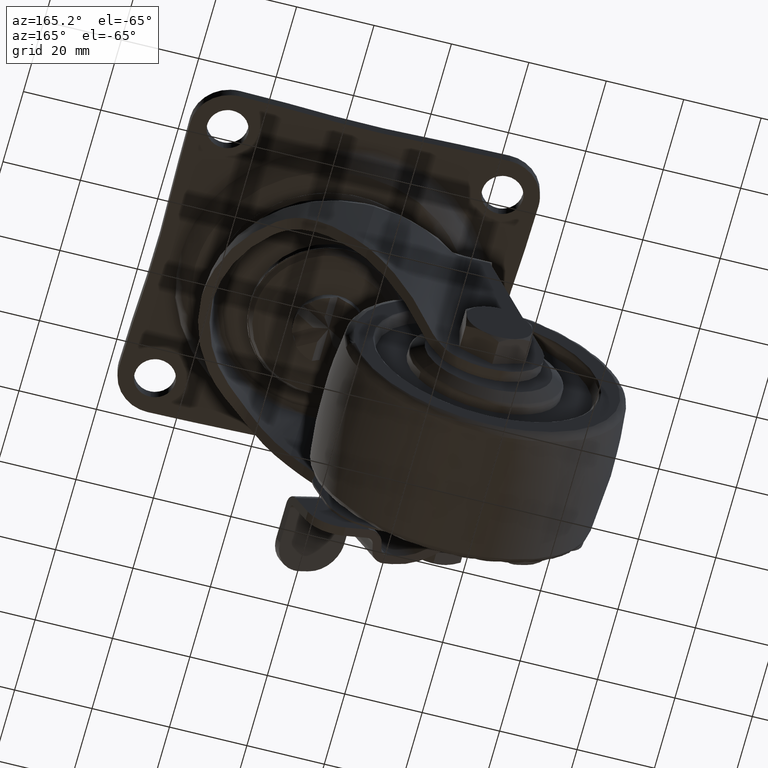
[diagram: clean part render]
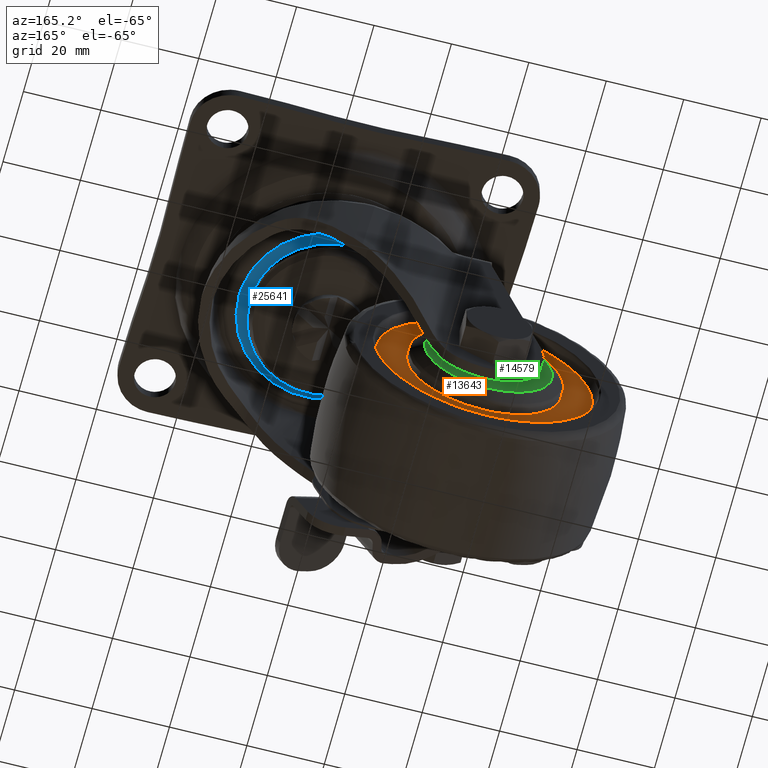
[diagram: same view with three faces highlighted in distinct colors, each labeled with its STEP entity id]
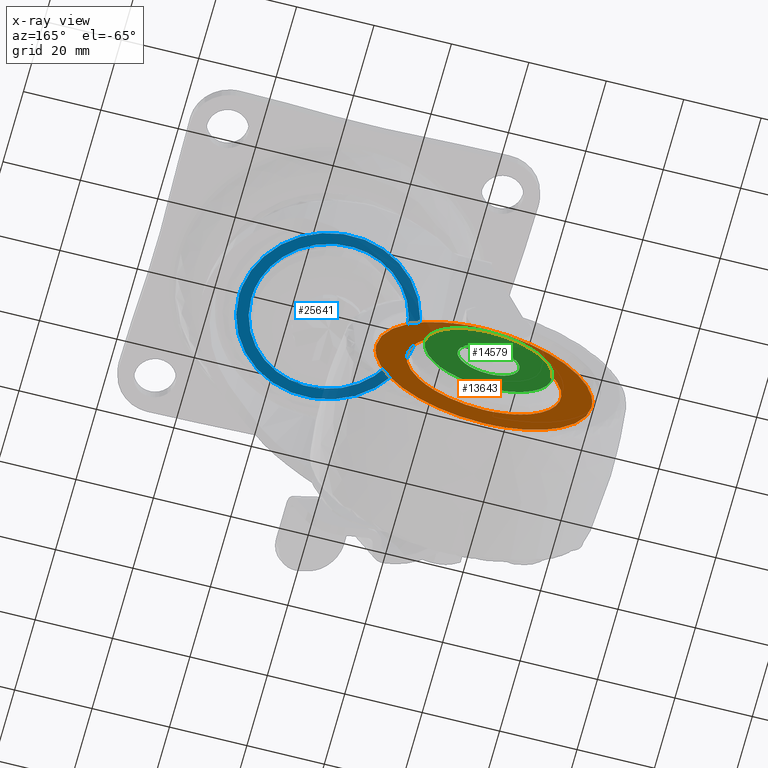
[diagram: x-ray of the same camera — body ghosted, the three highlighted faces saturated]
A machine part, auxiliary view with three faces highlighted in distinct colors.
The next image is the same camera in x-ray (body ghosted, the three faces saturated) — at least one of them is partly hidden behind the body in this view.
Their STEP definitions:

[orange] entity #13643 — the highlighted face is a freeform B-spline surface patch.
#13283=CARTESIAN_POINT('',(-8.179988041058948,15.500000000016479,-65.330344014411210));
#13284=VERTEX_POINT('',#13283);
#13290=CARTESIAN_POINT('',(-36.0,15.500000000000000,-40.500034000000603));
#13291=VERTEX_POINT('',#13290);
#13292=CARTESIAN_POINT('',(-8.179988041058948,15.500000000016477,-65.330344014411210));
#13293=CARTESIAN_POINT('',(-11.009044516951512,15.500000000008239,-40.500034000000234));
#13294=CARTESIAN_POINT('',(-36.0,15.500000000000000,-40.500034000000603));
#13302=(BOUNDED_CURVE()B_SPLINE_CURVE(2,(#13292,#13293,#13294),.UNSPECIFIED.,.F.,.U.)B_SPLINE_CURVE_WITH_KNOTS((3,3),(0.269614860200657,0.500000000000000),.UNSPECIFIED.)CURVE()GEOMETRIC_REPRESENTATION_ITEM()RATIONAL_B_SPLINE_CURVE((0.957645556945588,0.730087019349533,1.0))REPRESENTATION_ITEM(''));
#13303=EDGE_CURVE('',#13284,#13291,#13302,.T.);
#13305=CARTESIAN_POINT('',(-63.820011958941052,15.500000000016479,-71.669723985589982));
#13306=VERTEX_POINT('',#13305);
#13307=CARTESIAN_POINT('',(-36.0,15.500000000000000,-40.500034000000603));
#13308=CARTESIAN_POINT('',(-64.000000000002913,15.500000000007347,-40.500034000000944));
#13309=CARTESIAN_POINT('',(-64.000000000006196,15.500000000015589,-68.500034000001293));
#13310=CARTESIAN_POINT('',(-64.000000000006366,15.500000000016058,-70.089989223618517));
#13311=CARTESIAN_POINT('',(-63.820011958941052,15.500000000016476,-71.669723985589982));
#13319=(BOUNDED_CURVE()B_SPLINE_CURVE(2,(#13307,#13308,#13309,#13310,#13311),.UNSPECIFIED.,.F.,.U.)B_SPLINE_CURVE_WITH_KNOTS((3,2,3),(0.500000000000000,0.750000000000000,0.769614860200657),.UNSPECIFIED.)CURVE()GEOMETRIC_REPRESENTATION_ITEM()RATIONAL_B_SPLINE_CURVE((1.0,0.707106781186547,1.0,0.977019761837015,0.957645556945588))REPRESENTATION_ITEM(''));
#13320=EDGE_CURVE('',#13291,#13306,#13319,.T.);
#13350=CARTESIAN_POINT('',(-36.0,15.500000000000000,-96.500034000000596));
#13351=VERTEX_POINT('',#13350);
#13352=CARTESIAN_POINT('',(-63.820011958941052,15.500000000016476,-71.669723985589982));
#13353=CARTESIAN_POINT('',(-60.990955483048502,15.500000000008239,-96.500034000000952));
#13354=CARTESIAN_POINT('',(-36.0,15.500000000000000,-96.500034000000596));
#13362=(BOUNDED_CURVE()B_SPLINE_CURVE(2,(#13352,#13353,#13354),.UNSPECIFIED.,.F.,.U.)B_SPLINE_CURVE_WITH_KNOTS((3,3),(0.769614860200657,1.0),.UNSPECIFIED.)CURVE()GEOMETRIC_REPRESENTATION_ITEM()RATIONAL_B_SPLINE_CURVE((0.957645556945588,0.730087019349533,1.0))REPRESENTATION_ITEM(''));
#13363=EDGE_CURVE('',#13306,#13351,#13362,.T.);
#13365=CARTESIAN_POINT('',(-36.0,15.500000000000000,-96.500034000000596));
#13366=CARTESIAN_POINT('',(-7.999999999997083,15.500000000007347,-96.500034000000269));
#13367=CARTESIAN_POINT('',(-7.999999999993808,15.500000000015589,-68.500033999999900));
#13368=CARTESIAN_POINT('',(-7.999999999993624,15.500000000016058,-66.910078776382676));
#13369=CARTESIAN_POINT('',(-8.179988041058948,15.500000000016477,-65.330344014411210));
#13377=(BOUNDED_CURVE()B_SPLINE_CURVE(2,(#13365,#13366,#13367,#13368,#13369),.UNSPECIFIED.,.F.,.U.)B_SPLINE_CURVE_WITH_KNOTS((3,2,3),(0.0,0.250000000000000,0.269614860200657),.UNSPECIFIED.)CURVE()GEOMETRIC_REPRESENTATION_ITEM()RATIONAL_B_SPLINE_CURVE((1.0,0.707106781186547,1.0,0.977019761837015,0.957645556945588))REPRESENTATION_ITEM(''));
#13378=EDGE_CURVE('',#13351,#13284,#13377,.T.);
#13566=CARTESIAN_POINT('',(-66.797178914962970,15.500000000000000,-37.702834108539477));
#13567=CARTESIAN_POINT('',(-66.797178914962970,15.500000000000000,-99.297235393498781));
#13568=CARTESIAN_POINT('',(-5.202820584358026,15.500000000000000,-37.702834108539477));
#13569=CARTESIAN_POINT('',(-5.202820584358026,15.500000000000000,-99.297235393498781));
#13570=B_SPLINE_SURFACE_WITH_KNOTS('',1,1,((#13566,#13568),(#13567,#13569)),.UNSPECIFIED.,.F.,.F.,.U.,(2,2),(2,2),(0.0,61.594401284959311),(0.0,61.594358330604940),.UNSPECIFIED.);
#13571=ORIENTED_EDGE('',*,*,#13363,.F.);
#13572=ORIENTED_EDGE('',*,*,#13320,.F.);
#13573=ORIENTED_EDGE('',*,*,#13303,.F.);
#13574=ORIENTED_EDGE('',*,*,#13378,.F.);
#13575=EDGE_LOOP('',(#13571,#13572,#13573,#13574));
#13576=FACE_OUTER_BOUND('',#13575,.T.);
#13577=CARTESIAN_POINT('',(-36.0,15.500000000000000,-48.500034000000348));
#13578=VERTEX_POINT('',#13577);
#13579=CARTESIAN_POINT('',(-52.867833506232252,15.500000000000000,-57.754049037887270));
#13580=VERTEX_POINT('',#13579);
#13581=CARTESIAN_POINT('',(-36.0,15.500000000000000,-48.500034000000348));
#13582=CARTESIAN_POINT('',(-46.972381289470789,15.500000000000002,-48.500034000000838));
#13583=CARTESIAN_POINT('',(-52.867833506232245,15.499999999999998,-57.754049037887270));
#13591=(BOUNDED_CURVE()B_SPLINE_CURVE(2,(#13581,#13582,#13583),.UNSPECIFIED.,.F.,.U.)B_SPLINE_CURVE_WITH_KNOTS((3,3),(0.500000000000000,0.658049988508433),.UNSPECIFIED.)CURVE()GEOMETRIC_REPRESENTATION_ITEM()RATIONAL_B_SPLINE_CURVE((1.0,0.814832920529343,0.863791079318506))REPRESENTATION_ITEM(''));
#13592=EDGE_CURVE('',#13578,#13580,#13591,.T.);
#13593=ORIENTED_EDGE('',*,*,#13592,.T.);
#13594=CARTESIAN_POINT('',(-36.0,15.500000000000000,-88.500034000000852));
#13595=VERTEX_POINT('',#13594);
#13596=CARTESIAN_POINT('',(-52.867833506232245,15.499999999999998,-57.754049037887270));
#13597=CARTESIAN_POINT('',(-55.999999999998835,15.499999999999993,-62.670570242497327));
#13598=CARTESIAN_POINT('',(-55.999999999999062,15.500000000000000,-68.500034000001349));
#13599=CARTESIAN_POINT('',(-55.999999999999837,15.500000000000005,-88.500034000001136));
#13600=CARTESIAN_POINT('',(-36.0,15.500000000000000,-88.500034000000852));
#13608=(BOUNDED_CURVE()B_SPLINE_CURVE(2,(#13596,#13597,#13598,#13599,#13600),.UNSPECIFIED.,.F.,.U.)B_SPLINE_CURVE_WITH_KNOTS((3,2,3),(0.658049988508433,0.750000000000000,1.0),.UNSPECIFIED.)CURVE()GEOMETRIC_REPRESENTATION_ITEM()RATIONAL_B_SPLINE_CURVE((0.863791079318506,0.892273860657204,1.0,0.707106781186547,1.0))REPRESENTATION_ITEM(''));
#13609=EDGE_CURVE('',#13580,#13595,#13608,.T.);
#13610=ORIENTED_EDGE('',*,*,#13609,.T.);
#13611=CARTESIAN_POINT('',(-19.132166493767748,15.500000000000000,-79.246018962113908));
#13612=VERTEX_POINT('',#13611);
#13613=CARTESIAN_POINT('',(-36.0,15.500000000000000,-88.500034000000852));
#13614=CARTESIAN_POINT('',(-25.027618710529193,15.500000000000005,-88.500034000000340));
#13615=CARTESIAN_POINT('',(-19.132166493767745,15.500000000000004,-79.246018962113922));
#13623=(BOUNDED_CURVE()B_SPLINE_CURVE(2,(#13613,#13614,#13615),.UNSPECIFIED.,.F.,.U.)B_SPLINE_CURVE_WITH_KNOTS((3,3),(0.0,0.158049988508433),.UNSPECIFIED.)CURVE()GEOMETRIC_REPRESENTATION_ITEM()RATIONAL_B_SPLINE_CURVE((1.0,0.814832920529343,0.863791079318506))REPRESENTATION_ITEM(''));
#13624=EDGE_CURVE('',#13595,#13612,#13623,.T.);
#13625=ORIENTED_EDGE('',*,*,#13624,.T.);
#13626=CARTESIAN_POINT('',(-19.132166493767745,15.500000000000004,-79.246018962113922));
#13627=CARTESIAN_POINT('',(-16.000000000001162,15.500000000000002,-74.329497757503844));
#13628=CARTESIAN_POINT('',(-16.000000000000941,15.500000000000000,-68.500033999999829));
#13629=CARTESIAN_POINT('',(-16.000000000000171,15.500000000000005,-48.500034000000085));
#13630=CARTESIAN_POINT('',(-36.0,15.500000000000000,-48.500034000000348));
#13638=(BOUNDED_CURVE()B_SPLINE_CURVE(2,(#13626,#13627,#13628,#13629,#13630),.UNSPECIFIED.,.F.,.U.)B_SPLINE_CURVE_WITH_KNOTS((3,2,3),(0.158049988508433,0.250000000000000,0.500000000000000),.UNSPECIFIED.)CURVE()GEOMETRIC_REPRESENTATION_ITEM()RATIONAL_B_SPLINE_CURVE((0.863791079318506,0.892273860657204,1.0,0.707106781186547,1.0))REPRESENTATION_ITEM(''));
#13639=EDGE_CURVE('',#13612,#13578,#13638,.T.);
#13640=ORIENTED_EDGE('',*,*,#13639,.T.);
#13641=EDGE_LOOP('',(#13593,#13610,#13625,#13640));
#13642=FACE_BOUND('',#13641,.T.);
#13643=ADVANCED_FACE('',(#13576,#13642),#13570,.F.);

[blue] entity #25641 — the highlighted face is a freeform B-spline surface patch.
#24644=CARTESIAN_POINT('',(-1.220940604738921,19.962697814643821,-20.825541999997920));
#24645=VERTEX_POINT('',#24644);
#24646=CARTESIAN_POINT('',(20.0,0.0,-20.825542000000151));
#24647=VERTEX_POINT('',#24646);
#24648=CARTESIAN_POINT('',(-1.220940604738921,19.962697814643818,-20.825541999997924));
#24649=CARTESIAN_POINT('',(-0.611040130673797,19.999999999977504,-20.825541999997956));
#24650=CARTESIAN_POINT('',(1.354178E-012,19.999999999977849,-20.825541999997998));
#24651=CARTESIAN_POINT('',(20.000000000000647,19.999999999989264,-20.825541999999100));
#24652=CARTESIAN_POINT('',(20.0,0.0,-20.825542000000151));
#24660=(BOUNDED_CURVE()B_SPLINE_CURVE(2,(#24648,#24649,#24650,#24651,#24652),.UNSPECIFIED.,.F.,.U.)B_SPLINE_CURVE_WITH_KNOTS((3,2,3),(0.239333223153180,0.250000000000000,0.500000000000000),.UNSPECIFIED.)CURVE()GEOMETRIC_REPRESENTATION_ITEM()RATIONAL_B_SPLINE_CURVE((0.976072600856233,0.987503093579881,1.0,0.707106781186548,1.0))REPRESENTATION_ITEM(''));
#24661=EDGE_CURVE('',#24645,#24647,#24660,.T.);
#24663=CARTESIAN_POINT('',(1.220940604738919,-19.962697814643821,-20.825541999997931));
#24664=VERTEX_POINT('',#24663);
#24665=CARTESIAN_POINT('',(20.0,0.0,-20.825542000000151));
#24666=CARTESIAN_POINT('',(19.999999999999311,-18.814149840460210,-20.825541999999043));
#24667=CARTESIAN_POINT('',(1.220940604738919,-19.962697814643818,-20.825541999997931));
#24675=(BOUNDED_CURVE()B_SPLINE_CURVE(2,(#24665,#24666,#24667),.UNSPECIFIED.,.F.,.U.)B_SPLINE_CURVE_WITH_KNOTS((3,3),(0.500000000000000,0.739333223153180),.UNSPECIFIED.)CURVE()GEOMETRIC_REPRESENTATION_ITEM()RATIONAL_B_SPLINE_CURVE((1.0,0.719603687606667,0.976072600856233))REPRESENTATION_ITEM(''));
#24676=EDGE_CURVE('',#24647,#24664,#24675,.T.);
#24711=CARTESIAN_POINT('',(-20.0,0.0,-20.825542000000151));
#24712=VERTEX_POINT('',#24711);
#24713=CARTESIAN_POINT('',(-20.0,0.0,-20.825542000000151));
#24714=CARTESIAN_POINT('',(-19.999999999999297,18.814149840460210,-20.825541999999043));
#24715=CARTESIAN_POINT('',(-1.220940604738921,19.962697814643818,-20.825541999997924));
#24723=(BOUNDED_CURVE()B_SPLINE_CURVE(2,(#24713,#24714,#24715),.UNSPECIFIED.,.F.,.U.)B_SPLINE_CURVE_WITH_KNOTS((3,3),(0.0,0.239333223153180),.UNSPECIFIED.)CURVE()GEOMETRIC_REPRESENTATION_ITEM()RATIONAL_B_SPLINE_CURVE((1.0,0.719603687606667,0.976072600856233))REPRESENTATION_ITEM(''));
#24724=EDGE_CURVE('',#24712,#24645,#24723,.T.);
#24730=CARTESIAN_POINT('',(1.220940604738919,-19.962697814643818,-20.825541999997931));
#24731=CARTESIAN_POINT('',(0.611040130673798,-19.999999999977494,-20.825541999997967));
#24732=CARTESIAN_POINT('',(-1.350299E-012,-19.999999999977849,-20.825541999997998));
#24733=CARTESIAN_POINT('',(-20.000000000000647,-19.999999999989264,-20.825541999999100));
#24734=CARTESIAN_POINT('',(-20.0,0.0,-20.825542000000151));
#24742=(BOUNDED_CURVE()B_SPLINE_CURVE(2,(#24730,#24731,#24732,#24733,#24734),.UNSPECIFIED.,.F.,.U.)B_SPLINE_CURVE_WITH_KNOTS((3,2,3),(0.739333223153180,0.750000000000000,1.0),.UNSPECIFIED.)CURVE()GEOMETRIC_REPRESENTATION_ITEM()RATIONAL_B_SPLINE_CURVE((0.976072600856233,0.987503093579881,1.0,0.707106781186548,1.0))REPRESENTATION_ITEM(''));
#24743=EDGE_CURVE('',#24664,#24712,#24742,.T.);
#25403=CARTESIAN_POINT('',(-25.097762429813489,-25.213784278542288,-20.825542000000151));
#25404=CARTESIAN_POINT('',(25.429835009718690,-25.213784278542288,-20.825542000000151));
#25405=CARTESIAN_POINT('',(-25.097762429813489,25.214115962748519,-20.825542000000151));
#25406=CARTESIAN_POINT('',(25.429835009718690,25.214115962748519,-20.825542000000151));
#25407=B_SPLINE_SURFACE_WITH_KNOTS('',1,1,((#25403,#25405),(#25404,#25406)),.UNSPECIFIED.,.F.,.F.,.U.,(2,2),(2,2),(0.0,50.527597439532180),(0.0,50.427900241290807),.UNSPECIFIED.);
#25408=CARTESIAN_POINT('',(-22.803141699273748,4.553649E-015,-20.825542000000151));
#25409=VERTEX_POINT('',#25408);
#25410=CARTESIAN_POINT('',(23.007963301850250,2.412519250977678,-20.825542000000151));
#25411=VERTEX_POINT('',#25410);
#25412=CARTESIAN_POINT('',(-22.803141699273748,4.553649E-015,-20.825542000000151));
#25413=CARTESIAN_POINT('',(-22.803141699831802,0.758186905311727,-20.825542000000159));
#25414=CARTESIAN_POINT('',(-22.765637611730948,1.512002985702682,-20.825542000000141));
#25415=CARTESIAN_POINT('',(-22.617092639851151,3.011064975320944,-20.825542000000151));
#25416=CARTESIAN_POINT('',(-22.506049887578769,3.756310666789124,-20.825542000000141));
#25417=CARTESIAN_POINT('',(-22.320848181958521,4.682460405517658,-20.825542000000151));
#25418=CARTESIAN_POINT('',(-22.281482630242980,4.867419367118582,-20.825542000000151));
#25419=CARTESIAN_POINT('',(-22.198068658076640,5.236791536507957,-20.825542000000141));
#25420=CARTESIAN_POINT('',(-22.153994501668780,5.421282394524436,-20.825542000000151));
#25421=CARTESIAN_POINT('',(-22.015371574241222,5.971353710618440,-20.825542000000159));
#25422=CARTESIAN_POINT('',(-21.914246976550960,6.334378714920730,-20.825542000000151));
#25423=CARTESIAN_POINT('',(-21.585243832368828,7.412597306697753,-20.825542000000141));
#25424=CARTESIAN_POINT('',(-21.078349930534898,8.821323272602101,-20.825542000000151));
#25425=CARTESIAN_POINT('',(-20.437237513045059,10.173195176027409,-20.825542000000141));
#25426=CARTESIAN_POINT('',(-19.905448824446310,11.165515172101969,-20.825542000000151));
#25427=CARTESIAN_POINT('',(-19.719678502051661,11.492684815484720,-20.825542000000159));
#25428=CARTESIAN_POINT('',(-19.428041919821251,11.977940574292930,-20.825542000000141));
#25429=CARTESIAN_POINT('',(-19.328665182834790,12.138775608045590,-20.825542000000151));
#25430=CARTESIAN_POINT('',(-19.125533103898810,12.458590927873770,-20.825542000000141));
#25431=CARTESIAN_POINT('',(-19.021989846203621,12.617228509011570,-20.825542000000151));
#25432=CARTESIAN_POINT('',(-18.496020389537598,13.401746055379800,-20.825542000000151));
#25433=CARTESIAN_POINT('',(-18.047402062301501,14.004044908070700,-20.825542000000141));
#25434=CARTESIAN_POINT('',(-17.096085111628760,15.159471749021760,-20.825542000000151));
#25435=CARTESIAN_POINT('',(-16.593382612787732,15.712596213688361,-20.825542000000151));
#25436=CARTESIAN_POINT('',(-15.533904677536640,16.769680969202710,-20.825542000000151));
#25437=CARTESIAN_POINT('',(-14.977132962169810,17.273644643295860,-20.825542000000151));
#25438=CARTESIAN_POINT('',(-14.246394419303069,17.871982126229479,-20.825542000000151));
#25439=CARTESIAN_POINT('',(-14.098379548530890,17.990161488853211,-20.825542000000151));
#25440=CARTESIAN_POINT('',(-13.799374814566249,18.222884984147790,-20.825542000000141));
#25441=CARTESIAN_POINT('',(-13.648741979272970,18.337156527684179,-20.825542000000151));
#25442=CARTESIAN_POINT('',(-13.193490846972720,18.673772246339560,-20.825542000000141));
#25443=CARTESIAN_POINT('',(-12.885522045578870,18.889921433085011,-20.825542000000151));
#25444=CARTESIAN_POINT('',(-11.948441935948580,19.514011182476409,-20.825542000000141));
#25445=CARTESIAN_POINT('',(-10.663933669007969,20.281290879375732,-20.825542000000151));
#25446=CARTESIAN_POINT('',(-9.310182001070137,20.920541475403130,-20.825542000000141));
#25447=CARTESIAN_POINT('',(-8.268484698675607,21.351196977884900,-20.825542000000151));
#25448=CARTESIAN_POINT('',(-7.916847206240618,21.486603983141048,-20.825542000000151));
#25449=CARTESIAN_POINT('',(-7.382656805178900,21.677263214138769,-20.825542000000151));
#25450=CARTESIAN_POINT('',(-7.203219844805801,21.738819750576049,-20.825542000000151));
#25451=CARTESIAN_POINT('',(-6.843696570760470,21.857205345963990,-20.825542000000151));
#25452=CARTESIAN_POINT('',(-6.663560923420818,21.914060327318388,-20.825542000000151));
#25453=CARTESIAN_POINT('',(-5.761033093269688,22.186774029494408,-20.825542000000151));
#25454=CARTESIAN_POINT('',(-5.033105864427419,22.368034985325849,-20.825542000000151));
#25455=CARTESIAN_POINT('',(-3.565737962192797,22.658590115401569,-20.825542000000151));
#25456=CARTESIAN_POINT('',(-2.826296677265684,22.767880467141890,-20.825542000000151));
#25457=CARTESIAN_POINT('',(-1.335859958675001,22.914239960460399,-20.825542000000141));
#25458=CARTESIAN_POINT('',(-0.584865534436390,22.951315411624389,-20.825542000000151));
#25459=CARTESIAN_POINT('',(0.361335882907061,22.951039784072059,-20.825542000000141));
#25460=CARTESIAN_POINT('',(0.551033836640449,22.948638669388849,-20.825542000000151));
#25461=CARTESIAN_POINT('',(0.929074571279436,22.939185112665420,-20.825542000000141));
#25462=CARTESIAN_POINT('',(1.117675574861302,22.932135596884478,-20.825542000000151));
#25463=CARTESIAN_POINT('',(1.682233650530319,22.904091705410892,-20.825542000000141));
#25464=CARTESIAN_POINT('',(2.056946564041597,22.876206286405822,-20.825542000000141));
#25465=CARTESIAN_POINT('',(3.176184062066794,22.765403430020879,-20.825542000000151));
#25466=CARTESIAN_POINT('',(3.915818918745046,22.655403169796010,-20.825542000000141));
#25467=CARTESIAN_POINT('',(5.382159568933324,22.363792216392650,-20.825542000000159));
#25468=CARTESIAN_POINT('',(6.108865692610812,22.182183351918550,-20.825542000000151));
#25469=CARTESIAN_POINT('',(7.189035866941986,21.854997612437991,-20.825542000000151));
#25470=CARTESIAN_POINT('',(7.547441485529568,21.736790687953899,-20.825542000000151));
#25471=CARTESIAN_POINT('',(8.082520904431119,21.545472834048422,-20.825542000000151));
#25472=CARTESIAN_POINT('',(8.260125451748124,21.479478141147609,-20.825542000000151));
#25473=CARTESIAN_POINT('',(8.612646705799310,21.343521629359369,-20.825542000000141));
#25474=CARTESIAN_POINT('',(8.787745371969594,21.273495261399049,-20.825542000000141));
#25475=CARTESIAN_POINT('',(9.657486956454216,20.913225196130060,-20.825542000000141));
#25476=CARTESIAN_POINT('',(10.334916896313290,20.592641312481870,-20.825542000000141));
#25477=CARTESIAN_POINT('',(11.653839735676460,19.888129684987678,-20.825542000000151));
#25478=CARTESIAN_POINT('',(12.295331364727231,19.504199701796988,-20.825542000000151));
#25479=CARTESIAN_POINT('',(13.230423204143190,18.880456953852001,-20.825542000000151));
#25480=CARTESIAN_POINT('',(13.537588229015331,18.664553996506751,-20.825542000000151));
#25481=CARTESIAN_POINT('',(14.142722398704510,18.216539108154102,-20.825542000000141));
#25482=CARTESIAN_POINT('',(14.440862060439960,17.984287672023619,-20.825542000000141));
#25483=CARTESIAN_POINT('',(15.320131394942591,17.263546796537330,-20.825542000000151));
#25484=CARTESIAN_POINT('',(15.877707881070579,16.758109271881050,-20.825542000000151));
#25485=CARTESIAN_POINT('',(16.937606699761570,15.699049257862500,-20.825542000000151));
#25486=CARTESIAN_POINT('',(17.439923593270141,15.145422025315710,-20.825542000000151));
#25487=CARTESIAN_POINT('',(18.389598692061629,13.990240259167321,-20.825542000000159));
#25488=CARTESIAN_POINT('',(18.836959244831881,13.388687772716670,-20.825542000000159));
#25489=CARTESIAN_POINT('',(19.361004997600279,12.606089931724361,-20.825542000000141));
#25490=CARTESIAN_POINT('',(19.464052336419769,12.448033957106590,-20.825542000000151));
#25491=CARTESIAN_POINT('',(19.666586395320682,12.128816932919110,-20.825542000000141));
#25492=CARTESIAN_POINT('',(19.766208201691018,11.967427162599320,-20.825542000000141));
#25493=CARTESIAN_POINT('',(20.058498420652931,11.480510178034750,-20.825542000000151));
#25494=CARTESIAN_POINT('',(20.244547132340820,11.152384343136999,-20.825542000000151));
#25495=CARTESIAN_POINT('',(20.776787880294890,10.157674265206010,-20.825542000000151));
#25496=CARTESIAN_POINT('',(21.097135930567369,9.480781939266826,-20.825542000000151));
#25497=CARTESIAN_POINT('',(21.670124344695321,8.099991528867960,-20.825542000000151));
#25498=CARTESIAN_POINT('',(21.922763430963929,7.396092934832392,-20.825542000000141));
#25499=CARTESIAN_POINT('',(22.250404450197010,6.319776599774585,-20.825542000000159));
#25500=CARTESIAN_POINT('',(22.351050066223920,5.957587049213573,-20.825542000000151));
#25501=CARTESIAN_POINT('',(22.488957074398030,5.409093071979610,-20.825542000000151));
#25502=CARTESIAN_POINT('',(22.532748149031601,5.225393061995139,-20.825542000000141));
#25503=CARTESIAN_POINT('',(22.615926732398680,4.856236644139662,-20.825542000000151));
#25504=CARTESIAN_POINT('',(22.655332383750419,4.670663613666992,-20.825542000000151));
#25505=CARTESIAN_POINT('',(22.829451895192019,3.797566465122335,-20.825542000000151));
#25506=CARTESIAN_POINT('',(22.934533498025321,3.106716266939937,-20.825542000000151));
#25507=CARTESIAN_POINT('',(23.007963301850250,2.412519250977678,-20.825542000000151));
#25508=B_SPLINE_CURVE_WITH_KNOTS('',3,(#25412,#25413,#25414,#25415,#25416,#25417,#25418,#25419,#25420,#25421,#25422,#25423,#25424,#25425,#25426,#25427,#25428,#25429,#25430,#25431,#25432,#25433,#25434,#25435,#25436,#25437,#25438,#25439,#25440,#25441,#25442,#25443,#25444,#25445,#25446,#25447,#25448,#25449,#25450,#25451,#25452,#25453,#25454,#25455,#25456,#25457,#25458,#25459,#25460,#25461,#25462,#25463,#25464,#25465,#25466,#25467,#25468,#25469,#25470,#25471,#25472,#25473,#25474,#25475,#25476,#25477,#25478,#25479,#25480,#25481,#25482,#25483,#25484,#25485,#25486,#25487,#25488,#25489,#25490,#25491,#25492,#25493,#25494,#25495,#25496,#25497,#25498,#25499,#25500,#25501,#25502,#25503,#25504,#25505,#25506,#25507),.UNSPECIFIED.,.F.,.U.,(4,2,2,2,2,2,1,2,2,2,2,2,2,2,2,2,2,1,2,2,2,2,2,2,2,2,2,2,2,2,2,2,2,2,2,2,2,2,2,2,2,2,2,2,2,2,2,2,4),(0.0,0.015625000000000,0.031250000000000,0.035156250000000,0.039062500000000,0.046875000000000,0.062500000000000,0.078125000000000,0.085937500000000,0.089843750000000,0.093750000000000,0.109375000000000,0.125000000000000,0.140625000000000,0.144531250000000,0.148437500000000,0.156250000000000,0.171875000000000,0.187500000000000,0.195312500000000,0.199218750000000,0.203125000000000,0.218750000000000,0.234375000000000,0.250000000000000,0.253906250000000,0.257812500000000,0.265625000000000,0.281250000000000,0.296875000000000,0.304687500000000,0.308593750000000,0.312500000000000,0.328125000000000,0.343750000000000,0.351562500000000,0.359375000000000,0.375000000000001,0.390625000000001,0.406250000000001,0.410156250000001,0.414062500000001,0.421875000000001,0.437500000000001,0.453125000000001,0.460937500000001,0.464843750000001,0.468750000000001,0.483216268258271),.UNSPECIFIED.);
#25509=EDGE_CURVE('',#25409,#25411,#25508,.T.);
#25510=ORIENTED_EDGE('',*,*,#25509,.T.);
#25511=CARTESIAN_POINT('',(23.135213047016261,-0.017265770789163,-20.825542000000151));
#25512=VERTEX_POINT('',#25511);
#25513=CARTESIAN_POINT('',(23.007963301850250,2.412519250977678,-20.825542000000151));
#25514=CARTESIAN_POINT('',(23.013844960941970,2.356914855950588,-20.825542000000151));
#25515=CARTESIAN_POINT('',(23.019523547504100,2.301288988312969,-20.825542000000151));
#25516=CARTESIAN_POINT('',(23.098836740863650,1.495261446719451,-20.825542000000141));
#25517=CARTESIAN_POINT('',(23.135783631932849,0.740824700366827,-20.825542000000151));
#25518=CARTESIAN_POINT('',(23.135213047016261,-0.017265770789163,-20.825542000000151));
#25519=B_SPLINE_CURVE_WITH_KNOTS('',3,(#25513,#25514,#25515,#25516,#25517,#25518),.UNSPECIFIED.,.F.,.U.,(4,2,4),(0.483216268258271,0.484375000000002,0.500000000000002),.UNSPECIFIED.);
#25520=EDGE_CURVE('',#25411,#25512,#25519,.T.);
#25521=ORIENTED_EDGE('',*,*,#25520,.T.);
#25522=CARTESIAN_POINT('',(-22.675898972788168,-2.412517514469851,-20.825542000000151));
#25523=VERTEX_POINT('',#25522);
#25524=CARTESIAN_POINT('',(23.135213047016261,-0.017265770789163,-20.825542000000151));
#25525=CARTESIAN_POINT('',(23.134642262122750,-0.775356263098113,-20.825542000000141));
#25526=CARTESIAN_POINT('',(23.096581383582709,-1.527062238932947,-20.825542000000151));
#25527=CARTESIAN_POINT('',(22.948079755544210,-3.018147988302823,-20.825542000000151));
#25528=CARTESIAN_POINT('',(22.837631675234299,-3.757526513409756,-20.825542000000141));
#25529=CARTESIAN_POINT('',(22.544781047200580,-5.224029807020045,-20.825542000000151));
#25530=CARTESIAN_POINT('',(22.362381391369819,-5.951155068009217,-20.825542000000151));
#25531=CARTESIAN_POINT('',(22.088379511527950,-6.852227507869519,-20.825542000000151));
#25532=CARTESIAN_POINT('',(22.031273705911278,-7.032049384030351,-20.825542000000151));
#25533=CARTESIAN_POINT('',(21.912403452384961,-7.390899775344537,-20.825542000000159));
#25534=CARTESIAN_POINT('',(21.850548531263229,-7.570175290153823,-20.825542000000151));
#25535=CARTESIAN_POINT('',(21.658663641854361,-8.104727932645233,-20.825542000000141));
#25536=CARTESIAN_POINT('',(21.522437754973431,-8.456496313968653,-20.825542000000151));
#25537=CARTESIAN_POINT('',(21.089356240088641,-9.498280571973814,-20.825542000000141));
#25538=CARTESIAN_POINT('',(20.768154632782242,-10.174807628135881,-20.825542000000141));
#25539=CARTESIAN_POINT('',(20.061996766046050,-11.492538656960271,-20.825542000000141));
#25540=CARTESIAN_POINT('',(19.677039170793631,-12.133741889513869,-20.825542000000159));
#25541=CARTESIAN_POINT('',(19.051302571137128,-13.068786146289471,-20.825542000000141));
#25542=CARTESIAN_POINT('',(18.834659440052430,-13.375999582409360,-20.825542000000151));
#25543=CARTESIAN_POINT('',(18.497404141393989,-13.830010163524980,-20.825542000000151));
#25544=CARTESIAN_POINT('',(18.382936311509710,-13.980211561324650,-20.825542000000151));
#25545=CARTESIAN_POINT('',(18.149857451227991,-14.278318828475371,-20.825542000000151));
#25546=CARTESIAN_POINT('',(18.031149726410160,-14.426332549890439,-20.825542000000151));
#25547=CARTESIAN_POINT('',(17.430465123942259,-15.156620518355730,-20.825542000000151));
#25548=CARTESIAN_POINT('',(16.924808072839390,-15.712664307738351,-20.825542000000151));
#25549=CARTESIAN_POINT('',(15.864833436599390,-16.770127881788969,-20.825542000000159));
#25550=CARTESIAN_POINT('',(15.310511827874180,-17.271543149768011,-20.825542000000151));
#25551=CARTESIAN_POINT('',(14.153320619440450,-18.219876016496009,-20.825542000000141));
#25552=CARTESIAN_POINT('',(13.550453830080830,-18.666796770009221,-20.825542000000141));
#25553=CARTESIAN_POINT('',(12.765719355951960,-19.190479092711069,-20.825542000000151));
#25554=CARTESIAN_POINT('',(12.607211274556491,-19.293463043345952,-20.825542000000151));
#25555=CARTESIAN_POINT('',(12.287037378732990,-19.495886223467831,-20.825542000000141));
#25556=CARTESIAN_POINT('',(12.125612924958240,-19.595165815195660,-20.825542000000141));
#25557=CARTESIAN_POINT('',(11.639188379563519,-19.886124722431141,-20.825542000000151));
#25558=CARTESIAN_POINT('',(11.311318543952220,-20.071386930754120,-20.825542000000159));
#25559=CARTESIAN_POINT('',(10.317145534163879,-20.601520560860472,-20.825542000000141));
#25560=CARTESIAN_POINT('',(8.963462085541739,-21.240078608320481,-20.825542000000151));
#25561=CARTESIAN_POINT('',(7.554375135058647,-21.744091727385118,-20.825542000000141));
#25562=CARTESIAN_POINT('',(6.476495656598363,-22.070947938999769,-20.825542000000141));
#25563=CARTESIAN_POINT('',(6.113685572581562,-22.171359315481251,-20.825542000000151));
#25564=CARTESIAN_POINT('',(5.564100091488776,-22.308934712912510,-20.825542000000141));
#25565=CARTESIAN_POINT('',(5.379924324678723,-22.352637545466440,-20.825542000000141));
#25566=CARTESIAN_POINT('',(5.010117967345057,-22.435562637886481,-20.825542000000141));
#25567=CARTESIAN_POINT('',(4.825087871435096,-22.474652525462940,-20.825542000000151));
#25568=CARTESIAN_POINT('',(3.899310109683753,-22.658375215313409,-20.825542000000141));
#25569=CARTESIAN_POINT('',(3.156685289663827,-22.767915496205880,-20.825542000000141));
#25570=CARTESIAN_POINT('',(1.667539602293221,-22.914161271258578,-20.825542000000151));
#25571=CARTESIAN_POINT('',(0.921018486222721,-22.950862115718468,-20.825542000000151));
#25572=CARTESIAN_POINT('',(-0.575925221968080,-22.951327530536279,-20.825542000000141));
#25573=CARTESIAN_POINT('',(-1.326347515968033,-22.915097674115351,-20.825542000000141));
#25574=CARTESIAN_POINT('',(-2.266888284502687,-22.822832841407809,-20.825542000000141));
#25575=CARTESIAN_POINT('',(-2.455382924393172,-22.801991631505160,-20.825542000000151));
#25576=CARTESIAN_POINT('',(-2.831170365876283,-22.755728577382410,-20.825542000000141));
#25577=CARTESIAN_POINT('',(-3.018400473077292,-22.730322723493732,-20.825542000000141));
#25578=CARTESIAN_POINT('',(-3.578121917342155,-22.647357453596442,-20.825542000000151));
#25579=CARTESIAN_POINT('',(-3.948645615353027,-22.583054573189859,-20.825542000000141));
#25580=CARTESIAN_POINT('',(-5.052474135022322,-22.363610691938081,-20.825542000000130));
#25581=CARTESIAN_POINT('',(-5.778054586610668,-22.181996840553861,-20.825542000000141));
#25582=CARTESIAN_POINT('',(-7.208836040837336,-21.748924982051641,-20.825542000000141));
#25583=CARTESIAN_POINT('',(-7.914037346789477,-21.497468014446440,-20.825542000000151));
#25584=CARTESIAN_POINT('',(-8.956285877098482,-21.066978075103769,-20.825542000000141));
#25585=CARTESIAN_POINT('',(-9.301105210495372,-20.914581564219802,-20.825542000000141));
#25586=CARTESIAN_POINT('',(-9.814361201437851,-20.672370557794071,-20.825542000000141));
#25587=CARTESIAN_POINT('',(-9.984940032792780,-20.589278562236270,-20.825542000000151));
#25588=CARTESIAN_POINT('',(-10.322945035644629,-20.419429800441350,-20.825542000000141));
#25589=CARTESIAN_POINT('',(-10.490571351826089,-20.332583477474579,-20.825542000000141));
#25590=CARTESIAN_POINT('',(-11.321894792831049,-19.888843803646019,-20.825542000000141));
#25591=CARTESIAN_POINT('',(-11.965217852022050,-19.503496598901130,-20.825542000000141));
#25592=CARTESIAN_POINT('',(-13.209423934797750,-18.673531615059041,-20.825542000000141));
#25593=CARTESIAN_POINT('',(-13.810304993455260,-18.228911091799070,-20.825542000000151));
#25594=CARTESIAN_POINT('',(-14.969418029670960,-17.280107523800311,-20.825542000000141));
#25595=CARTESIAN_POINT('',(-15.527654039871789,-16.775930110938230,-20.825542000000151));
#25596=CARTESIAN_POINT('',(-16.197878453489771,-16.107204012276728,-20.825542000000141));
#25597=CARTESIAN_POINT('',(-16.330415964564502,-15.971643976399760,-20.825542000000151));
#25598=CARTESIAN_POINT('',(-16.591278584040801,-15.698159507026910,-20.825542000000151));
#25599=CARTESIAN_POINT('',(-16.719778494760490,-15.560062252436371,-20.825542000000151));
#25600=CARTESIAN_POINT('',(-17.099542783501111,-15.141746648993751,-20.825542000000141));
#25601=CARTESIAN_POINT('',(-17.345075283193509,-14.857506961646170,-20.825542000000141));
#25602=CARTESIAN_POINT('',(-18.059078393644160,-13.988936257339009,-20.825542000000151));
#25603=CARTESIAN_POINT('',(-18.505007740077939,-13.388790868759781,-20.825542000000141));
#25604=CARTESIAN_POINT('',(-19.337190112170742,-12.146632718944749,-20.825542000000151));
#25605=CARTESIAN_POINT('',(-19.723445028438270,-11.504621284111231,-20.825542000000151));
#25606=CARTESIAN_POINT('',(-20.257124647055150,-10.509540253206589,-20.825542000000151));
#25607=CARTESIAN_POINT('',(-20.427389928615181,-10.172487095844330,-20.825542000000141));
#25608=CARTESIAN_POINT('',(-20.752314453151062,-9.487463708273561,-20.825542000000141));
#25609=CARTESIAN_POINT('',(-20.905608104102839,-9.142373229682026,-20.825542000000141));
#25610=CARTESIAN_POINT('',(-21.338565918085980,-8.099529329652567,-20.825542000000151));
#25611=CARTESIAN_POINT('',(-21.591370995233440,-7.394221459651315,-20.825542000000141));
#25612=CARTESIAN_POINT('',(-22.026775281388961,-5.963859454939981,-20.825542000000141));
#25613=CARTESIAN_POINT('',(-22.209372394998240,-5.238804730873168,-20.825542000000141));
#25614=CARTESIAN_POINT('',(-22.430176420799491,-4.136289966121807,-20.825542000000141));
#25615=CARTESIAN_POINT('',(-22.494913516399681,-3.766291866130199,-20.825542000000151));
#25616=CARTESIAN_POINT('',(-22.578521954325289,-3.207498460940826,-20.825542000000141));
#25617=CARTESIAN_POINT('',(-22.604140848266528,-3.020600987703176,-20.825542000000151));
#25618=CARTESIAN_POINT('',(-22.644890505099969,-2.693247637501429,-20.825542000000141));
#25619=CARTESIAN_POINT('',(-22.661039884124961,-2.552984401325767,-20.825542000000141));
#25620=CARTESIAN_POINT('',(-22.675898972788168,-2.412517514469851,-20.825542000000151));
#25621=B_SPLINE_CURVE_WITH_KNOTS('',3,(#25524,#25525,#25526,#25527,#25528,#25529,#25530,#25531,#25532,#25533,#25534,#25535,#25536,#25537,#25538,#25539,#25540,#25541,#25542,#25543,#25544,#25545,#25546,#25547,#25548,#25549,#25550,#25551,#25552,#25553,#25554,#25555,#25556,#25557,#25558,#25559,#25560,#25561,#25562,#25563,#25564,#25565,#25566,#25567,#25568,#25569,#25570,#25571,#25572,#25573,#25574,#25575,#25576,#25577,#25578,#25579,#25580,#25581,#25582,#25583,#25584,#25585,#25586,#25587,#25588,#25589,#25590,#25591,#25592,#25593,#25594,#25595,#25596,#25597,#25598,#25599,#25600,#25601,#25602,#25603,#25604,#25605,#25606,#25607,#25608,#25609,#25610,#25611,#25612,#25613,#25614,#25615,#25616,#25617,#25618,#25619,#25620),.UNSPECIFIED.,.F.,.U.,(4,2,2,2,2,2,2,2,2,2,2,2,2,2,2,2,2,2,1,2,2,2,2,2,2,2,2,2,2,2,2,2,2,2,2,2,2,2,2,2,2,2,2,2,2,2,2,2,4),(0.500000000000002,0.515625000000002,0.531250000000002,0.546875000000002,0.550781250000002,0.554687500000002,0.562500000000002,0.578125000000003,0.593750000000003,0.601562500000003,0.605468750000003,0.609375000000003,0.625000000000003,0.640625000000003,0.656250000000004,0.660156250000004,0.664062500000003,0.671875000000003,0.687500000000003,0.703125000000003,0.710937500000003,0.714843750000003,0.718750000000003,0.734375000000003,0.750000000000003,0.765625000000003,0.769531250000003,0.773437500000003,0.781250000000003,0.796875000000003,0.812500000000003,0.820312500000003,0.824218750000003,0.828125000000003,0.843750000000002,0.859375000000002,0.875000000000002,0.878906250000002,0.882812500000002,0.890625000000002,0.906250000000002,0.921875000000001,0.929687500000001,0.937500000000001,0.953125000000001,0.968750000000000,0.976562500000000,0.980468750000000,0.983381014884931),.UNSPECIFIED.);
#25622=EDGE_CURVE('',#25512,#25523,#25621,.T.);
#25623=ORIENTED_EDGE('',*,*,#25622,.T.);
#25624=CARTESIAN_POINT('',(-22.675898972788168,-2.412517514469851,-20.825542000000151));
#25625=CARTESIAN_POINT('',(-22.680970523412821,-2.364574761420464,-20.825542000000151));
#25626=CARTESIAN_POINT('',(-22.685891764869812,-2.316608284591457,-20.825542000000151));
#25627=CARTESIAN_POINT('',(-22.765636325293510,-1.514395378934267,-20.825542000000151));
#25628=CARTESIAN_POINT('',(-22.803141775517691,-0.758186913436096,-20.825542000000151));
#25629=CARTESIAN_POINT('',(-22.803141699273748,4.553649E-015,-20.825542000000151));
#25630=B_SPLINE_CURVE_WITH_KNOTS('',3,(#25624,#25625,#25626,#25627,#25628,#25629),.UNSPECIFIED.,.F.,.U.,(4,2,4),(0.983381014884931,0.984375000000000,1.0),.UNSPECIFIED.);
#25631=EDGE_CURVE('',#25523,#25409,#25630,.T.);
#25632=ORIENTED_EDGE('',*,*,#25631,.T.);
#25633=EDGE_LOOP('',(#25510,#25521,#25623,#25632));
#25634=FACE_OUTER_BOUND('',#25633,.T.);
#25635=ORIENTED_EDGE('',*,*,#24676,.F.);
#25636=ORIENTED_EDGE('',*,*,#24661,.F.);
#25637=ORIENTED_EDGE('',*,*,#24724,.F.);
#25638=ORIENTED_EDGE('',*,*,#24743,.F.);
#25639=EDGE_LOOP('',(#25635,#25636,#25637,#25638));
#25640=FACE_BOUND('',#25639,.T.);
#25641=ADVANCED_FACE('',(#25634,#25640),#25407,.F.);

[green] entity #14579 — the highlighted face is a freeform B-spline surface patch.
#14319=CARTESIAN_POINT('',(-22.084041144088800,19.999999999999911,-77.365477537725695));
#14320=VERTEX_POINT('',#14319);
#14326=CARTESIAN_POINT('',(-36.0,20.0,-52.000034000000603));
#14327=VERTEX_POINT('',#14326);
#14328=CARTESIAN_POINT('',(-22.084041144088925,20.000000000000007,-77.365477537725624));
#14329=CARTESIAN_POINT('',(-19.499999999999996,20.000000000000004,-73.309345423172601));
#14330=CARTESIAN_POINT('',(-19.500000000000000,20.0,-68.500034000000596));
#14331=CARTESIAN_POINT('',(-19.500000000000004,19.999999999999996,-52.000034000000610));
#14332=CARTESIAN_POINT('',(-36.0,20.0,-52.000034000000603));
#14340=(BOUNDED_CURVE()B_SPLINE_CURVE(2,(#14328,#14329,#14330,#14331,#14332),.UNSPECIFIED.,.F.,.U.)B_SPLINE_CURVE_WITH_KNOTS((3,2,3),(0.158049923285862,0.250000000000000,0.500000000000000),.UNSPECIFIED.)CURVE()GEOMETRIC_REPRESENTATION_ITEM()RATIONAL_B_SPLINE_CURVE((0.863791038911368,0.892273784244208,1.0,0.707106781186548,1.0))REPRESENTATION_ITEM(''));
#14341=EDGE_CURVE('',#14320,#14327,#14340,.T.);
#14343=CARTESIAN_POINT('',(-49.915958855911192,19.999999999999918,-59.634590462275483));
#14344=VERTEX_POINT('',#14343);
#14345=CARTESIAN_POINT('',(-36.0,20.0,-52.000034000000603));
#14346=CARTESIAN_POINT('',(-45.052209979338137,20.0,-52.000034000000610));
#14347=CARTESIAN_POINT('',(-49.915958855911057,19.999999999999996,-59.634590462275561));
#14355=(BOUNDED_CURVE()B_SPLINE_CURVE(2,(#14345,#14346,#14347),.UNSPECIFIED.,.F.,.U.)B_SPLINE_CURVE_WITH_KNOTS((3,3),(0.500000000000000,0.658049923285861),.UNSPECIFIED.)CURVE()GEOMETRIC_REPRESENTATION_ITEM()RATIONAL_B_SPLINE_CURVE((1.0,0.814832996942340,0.863791038911368))REPRESENTATION_ITEM(''));
#14356=EDGE_CURVE('',#14327,#14344,#14355,.T.);
#14390=CARTESIAN_POINT('',(-36.0,20.0,-85.000034000000596));
#14391=VERTEX_POINT('',#14390);
#14392=CARTESIAN_POINT('',(-49.915958855911057,19.999999999999996,-59.634590462275561));
#14393=CARTESIAN_POINT('',(-52.500000000000000,19.999999999999996,-63.690722576828584));
#14394=CARTESIAN_POINT('',(-52.500000000000000,20.0,-68.500034000000596));
#14395=CARTESIAN_POINT('',(-52.500000000000007,19.999999999999996,-85.000034000000596));
#14396=CARTESIAN_POINT('',(-36.0,20.0,-85.000034000000596));
#14404=(BOUNDED_CURVE()B_SPLINE_CURVE(2,(#14392,#14393,#14394,#14395,#14396),.UNSPECIFIED.,.F.,.U.)B_SPLINE_CURVE_WITH_KNOTS((3,2,3),(0.658049923285861,0.750000000000000,1.0),.UNSPECIFIED.)CURVE()GEOMETRIC_REPRESENTATION_ITEM()RATIONAL_B_SPLINE_CURVE((0.863791038911368,0.892273784244208,1.0,0.707106781186548,1.0))REPRESENTATION_ITEM(''));
#14405=EDGE_CURVE('',#14344,#14391,#14404,.T.);
#14407=CARTESIAN_POINT('',(-36.0,20.0,-85.000034000000596));
#14408=CARTESIAN_POINT('',(-26.947790020661852,19.999999999999993,-85.000034000000596));
#14409=CARTESIAN_POINT('',(-22.084041144088925,19.999999999999996,-77.365477537725596));
#14417=(BOUNDED_CURVE()B_SPLINE_CURVE(2,(#14407,#14408,#14409),.UNSPECIFIED.,.F.,.U.)B_SPLINE_CURVE_WITH_KNOTS((3,3),(0.0,0.158049923285862),.UNSPECIFIED.)CURVE()GEOMETRIC_REPRESENTATION_ITEM()RATIONAL_B_SPLINE_CURVE((1.0,0.814832996942339,0.863791038911368))REPRESENTATION_ITEM(''));
#14418=EDGE_CURVE('',#14391,#14320,#14417,.T.);
#14502=CARTESIAN_POINT('',(-54.148273600672667,20.0,-50.351684063961002));
#14503=CARTESIAN_POINT('',(-54.148273600672667,20.0,-86.648384821169159));
#14504=CARTESIAN_POINT('',(-17.851726989413311,20.0,-50.351684063961002));
#14505=CARTESIAN_POINT('',(-17.851726989413311,20.0,-86.648384821169159));
#14506=B_SPLINE_SURFACE_WITH_KNOTS('',1,1,((#14502,#14504),(#14503,#14505)),.UNSPECIFIED.,.F.,.F.,.U.,(2,2),(2,2),(0.0,36.296700757208157),(0.0,36.296546611259359),.UNSPECIFIED.);
#14507=ORIENTED_EDGE('',*,*,#14405,.F.);
#14508=ORIENTED_EDGE('',*,*,#14356,.F.);
#14509=ORIENTED_EDGE('',*,*,#14341,.F.);
#14510=ORIENTED_EDGE('',*,*,#14418,.F.);
#14511=EDGE_LOOP('',(#14507,#14508,#14509,#14510));
#14512=FACE_OUTER_BOUND('',#14511,.T.);
#14513=CARTESIAN_POINT('',(-36.0,20.0,-60.500034000000447));
#14514=VERTEX_POINT('',#14513);
#14515=CARTESIAN_POINT('',(-43.985078387366940,20.0,-68.011645683588597));
#14516=VERTEX_POINT('',#14515);
#14517=CARTESIAN_POINT('',(-36.0,20.0,-60.500034000000447));
#14518=CARTESIAN_POINT('',(-43.525648535119998,20.000000000000004,-60.500034000000447));
#14519=CARTESIAN_POINT('',(-43.985078387366940,20.0,-68.011645683588597));
#14527=(BOUNDED_CURVE()B_SPLINE_CURVE(2,(#14517,#14518,#14519),.UNSPECIFIED.,.F.,.U.)B_SPLINE_CURVE_WITH_KNOTS((3,3),(0.500000000000000,0.739332962239092),.UNSPECIFIED.)CURVE()GEOMETRIC_REPRESENTATION_ITEM()RATIONAL_B_SPLINE_CURVE((1.0,0.719603993286536,0.976072041667036))REPRESENTATION_ITEM(''));
#14528=EDGE_CURVE('',#14514,#14516,#14527,.T.);
#14529=ORIENTED_EDGE('',*,*,#14528,.T.);
#14530=CARTESIAN_POINT('',(-36.0,20.0,-76.500034000000753));
#14531=VERTEX_POINT('',#14530);
#14532=CARTESIAN_POINT('',(-43.985078387366933,19.999999999999993,-68.011645683588611));
#14533=CARTESIAN_POINT('',(-44.000000000000149,19.999999999999993,-68.255611893545137));
#14534=CARTESIAN_POINT('',(-44.000000000000149,20.0,-68.500034000000596));
#14535=CARTESIAN_POINT('',(-44.000000000000142,20.0,-76.500034000000767));
#14536=CARTESIAN_POINT('',(-36.0,20.0,-76.500034000000753));
#14544=(BOUNDED_CURVE()B_SPLINE_CURVE(2,(#14532,#14533,#14534,#14535,#14536),.UNSPECIFIED.,.F.,.U.)B_SPLINE_CURVE_WITH_KNOTS((3,2,3),(0.739332962239092,0.750000000000000,1.0),.UNSPECIFIED.)CURVE()GEOMETRIC_REPRESENTATION_ITEM()RATIONAL_B_SPLINE_CURVE((0.976072041667037,0.987502787900012,1.0,0.707106781186547,1.0))REPRESENTATION_ITEM(''));
#14545=EDGE_CURVE('',#14516,#14531,#14544,.T.);
#14546=ORIENTED_EDGE('',*,*,#14545,.T.);
#14547=CARTESIAN_POINT('',(-28.014921612633060,20.0,-68.988422316412596));
#14548=VERTEX_POINT('',#14547);
#14549=CARTESIAN_POINT('',(-36.0,20.0,-76.500034000000753));
#14550=CARTESIAN_POINT('',(-28.474351464879998,20.000000000000004,-76.500034000000738));
#14551=CARTESIAN_POINT('',(-28.014921612633053,20.0,-68.988422316412610));
#14559=(BOUNDED_CURVE()B_SPLINE_CURVE(2,(#14549,#14550,#14551),.UNSPECIFIED.,.F.,.U.)B_SPLINE_CURVE_WITH_KNOTS((3,3),(0.0,0.239332962239092),.UNSPECIFIED.)CURVE()GEOMETRIC_REPRESENTATION_ITEM()RATIONAL_B_SPLINE_CURVE((1.0,0.719603993286536,0.976072041667036))REPRESENTATION_ITEM(''));
#14560=EDGE_CURVE('',#14531,#14548,#14559,.T.);
#14561=ORIENTED_EDGE('',*,*,#14560,.T.);
#14562=CARTESIAN_POINT('',(-28.014921612633060,20.000000000000004,-68.988422316412610));
#14563=CARTESIAN_POINT('',(-27.999999999999851,20.000000000000004,-68.744456106456056));
#14564=CARTESIAN_POINT('',(-27.999999999999851,20.0,-68.500034000000596));
#14565=CARTESIAN_POINT('',(-27.999999999999847,20.0,-60.500034000000454));
#14566=CARTESIAN_POINT('',(-36.0,20.0,-60.500034000000447));
#14574=(BOUNDED_CURVE()B_SPLINE_CURVE(2,(#14562,#14563,#14564,#14565,#14566),.UNSPECIFIED.,.F.,.U.)B_SPLINE_CURVE_WITH_KNOTS((3,2,3),(0.239332962239091,0.250000000000000,0.500000000000000),.UNSPECIFIED.)CURVE()GEOMETRIC_REPRESENTATION_ITEM()RATIONAL_B_SPLINE_CURVE((0.976072041667036,0.987502787900011,1.0,0.707106781186547,1.0))REPRESENTATION_ITEM(''));
#14575=EDGE_CURVE('',#14548,#14514,#14574,.T.);
#14576=ORIENTED_EDGE('',*,*,#14575,.T.);
#14577=EDGE_LOOP('',(#14529,#14546,#14561,#14576));
#14578=FACE_BOUND('',#14577,.T.);
#14579=ADVANCED_FACE('',(#14512,#14578),#14506,.F.);